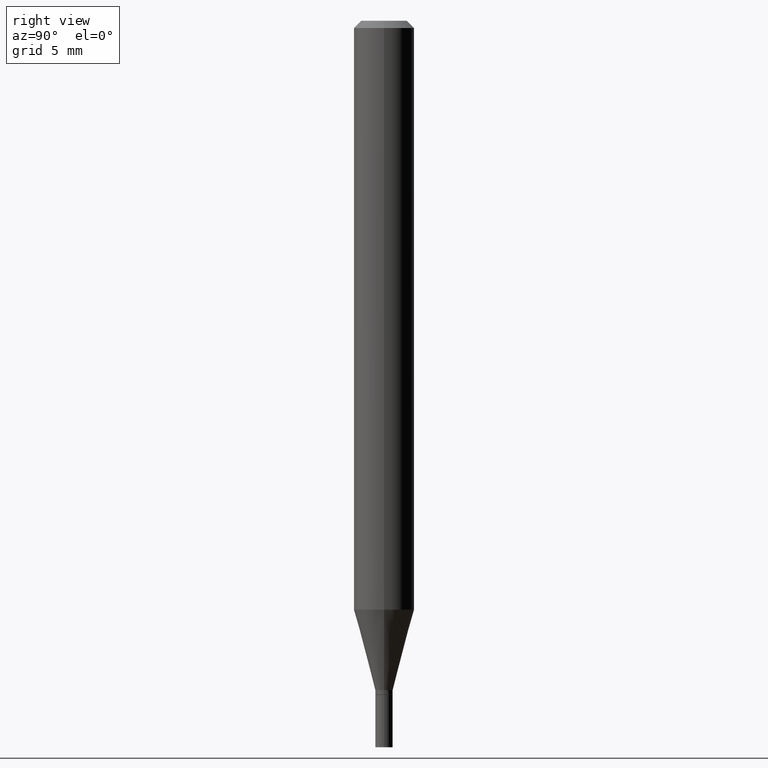
[diagram: clean part render]
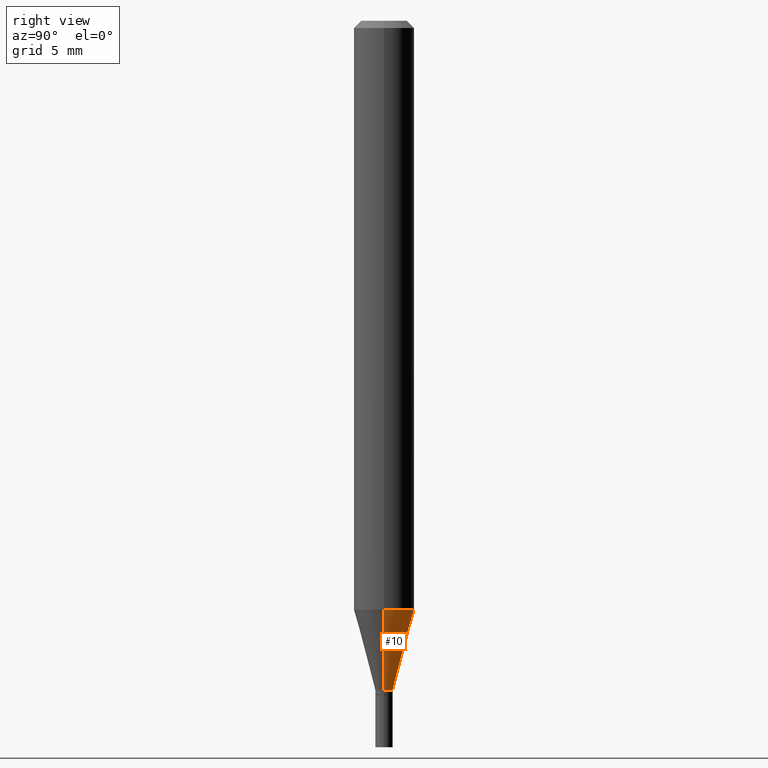
[diagram: same view with one face highlighted and labeled with its STEP entity id]
A machine part, right view. The second image highlights one B-rep face of the part: STEP entity #10.
In plain terms, the highlighted conical surface has half-angle 15 deg.
Its self-contained STEP definition (entity closure, byte-faithful):
#9 = ORIENTED_EDGE ( 'NONE', *, *, #77, .T. ) ;
#10 = ADVANCED_FACE ( 'NONE', ( #354 ), #415, .T. ) ;
#39 = VERTEX_POINT ( 'NONE', #62 ) ;
#47 = ORIENTED_EDGE ( 'NONE', *, *, #225, .T. ) ;
#54 = CARTESIAN_POINT ( 'NONE',  ( 2.973503574579014958E-29, -4.245375044395493202E-15, -1.215923739063185183 ) ) ;
#62 = CARTESIAN_POINT ( 'NONE',  ( -0.01799999999999991884, -4.249307676194920787E-15, -1.382000000000000117 ) ) ;
#68 = EDGE_CURVE ( 'NONE', #108, #141, #424, .T. ) ;
#77 = EDGE_CURVE ( 'NONE', #108, #39, #352, .T. ) ;
#91 = DIRECTION ( 'NONE',  ( 1.000000000000000000, -6.982962677686256455E-15, 0.000000000000000000 ) ) ;
#96 = CARTESIAN_POINT ( 'NONE',  ( 0.06250000000000001388, -4.681810211750884871E-15, -1.215923739063185183 ) ) ;
#108 = VERTEX_POINT ( 'NONE', #170 ) ;
#120 = DIRECTION ( 'NONE',  ( -2.445468806185136597E-29, 3.491481338843145583E-15, 1.000000000000000000 ) ) ;
#141 = VERTEX_POINT ( 'NONE', #96 ) ;
#163 = DIRECTION ( 'NONE',  ( 1.000000000000000000, -6.982962677686270655E-15, 0.000000000000000000 ) ) ;
#170 = CARTESIAN_POINT ( 'NONE',  ( 0.01799999999999991884, -4.950920538479579759E-15, -1.382000000000000117 ) ) ;
#189 = ORIENTED_EDGE ( 'NONE', *, *, #375, .F. ) ;
#214 = AXIS2_PLACEMENT_3D ( 'NONE', #292, #394, #356 ) ;
#225 = EDGE_CURVE ( 'NONE', #39, #348, #252, .T. ) ;
#236 = CARTESIAN_POINT ( 'NONE',  ( 0.01799999999999991884, -4.950920538479579759E-15, -1.382000000000000117 ) ) ;
#252 = LINE ( 'NONE', #371, #291 ) ;
#262 = DIRECTION ( 'NONE',  ( -0.2588190451025211836, 5.211531920934547886E-15, 0.9659258262890679791 ) ) ;
#282 = CIRCLE ( 'NONE', #360, 0.06250000000000000000 ) ;
#291 = VECTOR ( 'NONE', #262, 39.37007874015748854 ) ;
#292 = CARTESIAN_POINT ( 'NONE',  ( 3.379637890147859239E-29, -4.825227210281227557E-15, -1.382000000000000117 ) ) ;
#295 = EDGE_LOOP ( 'NONE', ( #9, #47, #189, #349 ) ) ;
#300 = AXIS2_PLACEMENT_3D ( 'NONE', #391, #457, #91 ) ;
#307 = CARTESIAN_POINT ( 'NONE',  ( -0.06250000000000001388, -3.801285834545430586E-15, -1.215923739063185183 ) ) ;
#324 = DIRECTION ( 'NONE',  ( 0.2588190451025211836, 1.565188264969622559E-15, 0.9659258262890679791 ) ) ;
#348 = VERTEX_POINT ( 'NONE', #307 ) ;
#349 = ORIENTED_EDGE ( 'NONE', *, *, #68, .F. ) ;
#352 = CIRCLE ( 'NONE', #300, 0.01799999999999991884 ) ;
#354 = FACE_OUTER_BOUND ( 'NONE', #295, .T. ) ;
#356 = DIRECTION ( 'NONE',  ( 1.000000000000000000, -6.982962677686256455E-15, 0.000000000000000000 ) ) ;
#360 = AXIS2_PLACEMENT_3D ( 'NONE', #54, #120, #163 ) ;
#371 = CARTESIAN_POINT ( 'NONE',  ( -0.01799999999999991884, -4.697329517844410199E-15, -1.382000000000000117 ) ) ;
#375 = EDGE_CURVE ( 'NONE', #141, #348, #282, .T. ) ;
#384 = VECTOR ( 'NONE', #324, 39.37007874015748854 ) ;
#391 = CARTESIAN_POINT ( 'NONE',  ( 3.379637890147859239E-29, -4.825227210281227557E-15, -1.382000000000000117 ) ) ;
#394 = DIRECTION ( 'NONE',  ( -2.445468806185136597E-29, 3.491481338843145583E-15, 1.000000000000000000 ) ) ;
#415 = CONICAL_SURFACE ( 'NONE', #214, 0.01799999999999991884, 0.2617993877991499074 ) ;
#424 = LINE ( 'NONE', #236, #384 ) ;
#457 = DIRECTION ( 'NONE',  ( -2.445468806185136597E-29, 3.491481338843145583E-15, 1.000000000000000000 ) ) ;